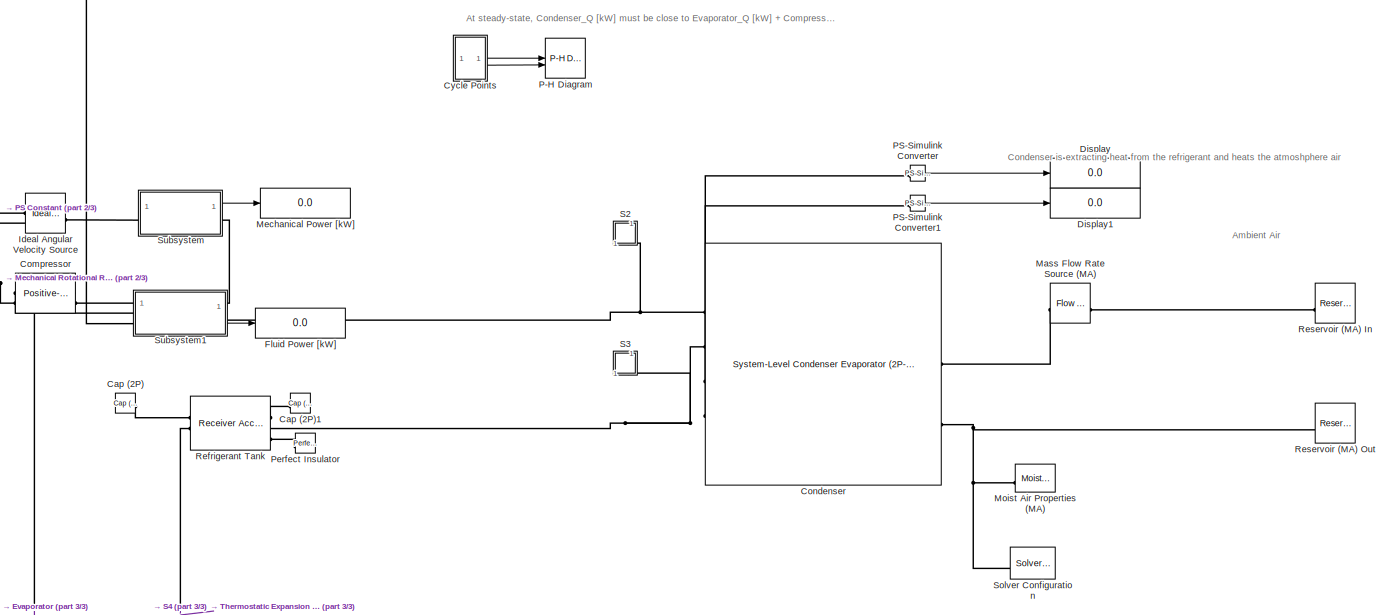
[diagram: root canvas - part 1/3, full width, top band]
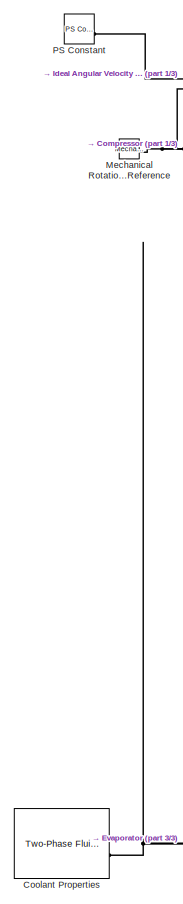
[diagram: root canvas - part 2/3, middle left region]
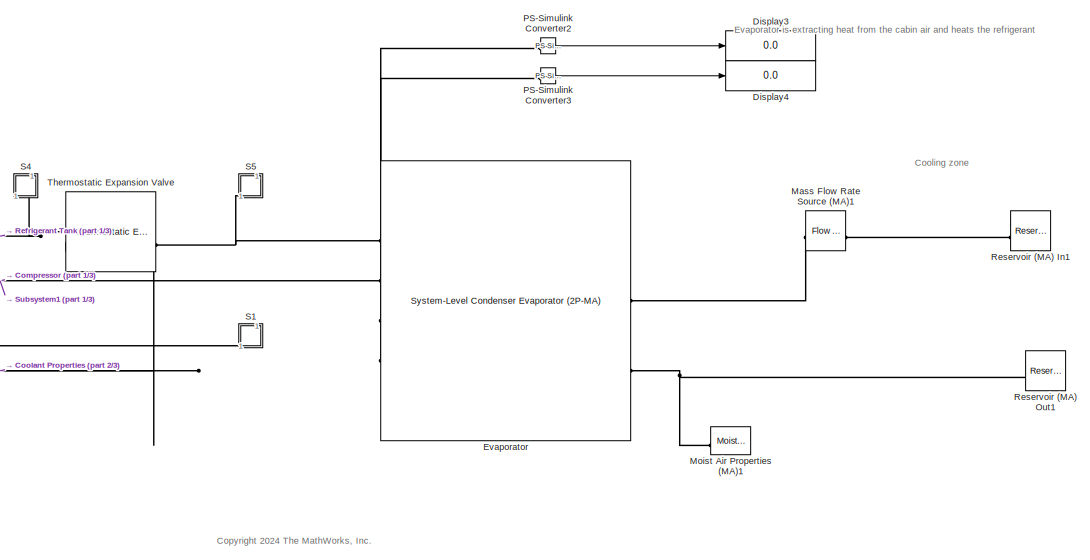
[diagram: root canvas - part 3/3, bottom center region]
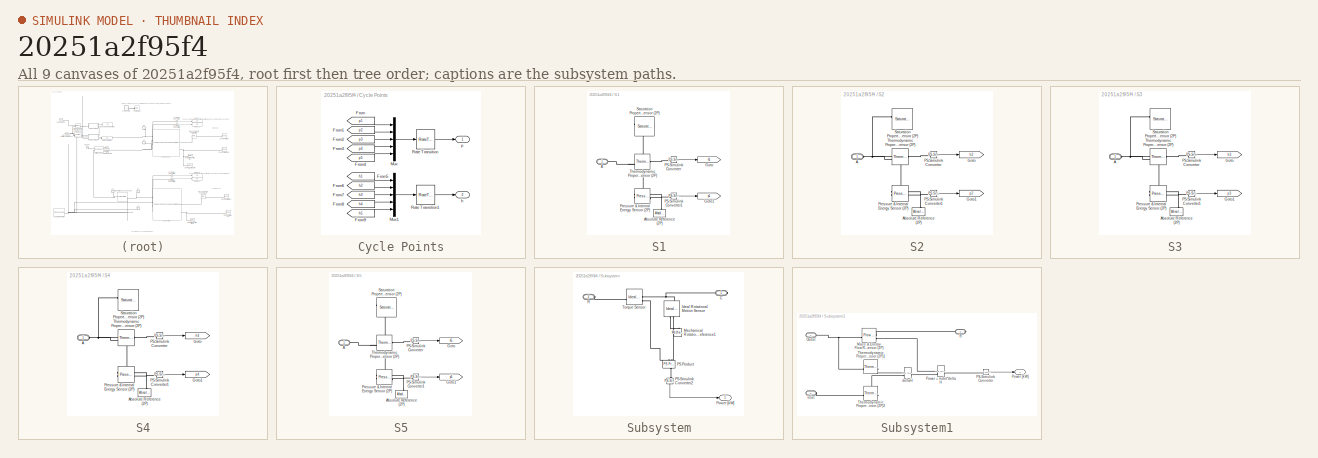
[diagram: thumbnail index - all 9 canvases of the model, root first then tree order]
MODEL slx_20251a2f95f4
KIND model
CONFIG AbsTol = 1e-3
CONFIG EnableMultiTasking = off
CONFIG FixedStep = 0.1
CONFIG MaxStep = 1
CONFIG MinStep = auto
CONFIG RelTol = 1e-3
CONFIG SampleTimeConstraint = Unconstrained
CONFIG SolverName = daessc
CONFIG StartTime = 0
CONFIG StopTime = 600
BLOCK [Reference]  Condenser  REF=SimscapeFluids_lib/Fluid Network
Interfaces/Heat Exchangers/System-Level
Condenser Evaporator
(2P-MA)
  SourceBlock = SimscapeFluids_lib/Fluid Network\nInterfaces/Heat Exchangers/System-Level\nCondenser Evaporator\n(2P-MA)
  SourceType = System-Level\nCondenser Evaporator\n(2P-MA)
BLOCK [Reference]  Evaporator  REF=SimscapeFluids_lib/Fluid Network
Interfaces/Heat Exchangers/System-Level
Condenser Evaporator
(2P-MA)
  SourceBlock = SimscapeFluids_lib/Fluid Network\nInterfaces/Heat Exchangers/System-Level\nCondenser Evaporator\n(2P-MA)
  SourceType = System-Level\nCondenser Evaporator\n(2P-MA)
BLOCK [Reference] Cap (2P)  REF=fl_lib/Two-Phase Fluid/Elements/Cap (2P)
  SourceBlock = fl_lib/Two-Phase Fluid/Elements/Cap (2P)
  SourceType = Cap (2P)
BLOCK [Reference] Cap (2P)1  REF=fl_lib/Two-Phase Fluid/Elements/Cap (2P)
  SourceBlock = fl_lib/Two-Phase Fluid/Elements/Cap (2P)
  SourceType = Cap (2P)
BLOCK [Reference] Compressor  REF=SimscapeFluids_lib/Two-Phase Fluid/Fluid Machines/Positive-Displacement
Compressor (2P)
  SourceBlock = SimscapeFluids_lib/Two-Phase Fluid/Fluid Machines/Positive-Displacement\nCompressor (2P)
  SourceType = Positive-Displacement\nCompressor (2P)
BLOCK [Reference] Coolant Properties  REF=SimscapeFluids_lib/Two-Phase Fluid/Utilities/Two-Phase Fluid
Predefined
Properties (2P)
  AttributesFormatString = Fluid Name = %<fluid>
  SourceBlock = SimscapeFluids_lib/Two-Phase Fluid/Utilities/Two-Phase Fluid\nPredefined\nProperties (2P)
  SourceType = Two-Phase Fluid\nPredefined\nProperties (2P)
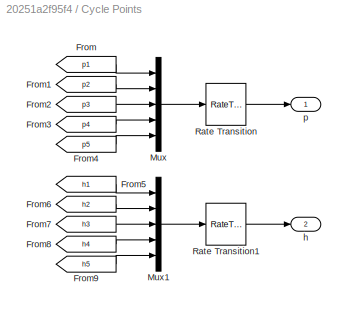
BLOCK [SubSystem] Cycle Points
BLOCK [From] Cycle Points/From
  GotoTag = p1
  TagVisibility = global
BLOCK [From] Cycle Points/From1
  GotoTag = p2
  TagVisibility = global
BLOCK [From] Cycle Points/From2
  GotoTag = p3
  TagVisibility = global
BLOCK [From] Cycle Points/From3
  GotoTag = p4
  TagVisibility = global
BLOCK [From] Cycle Points/From4
  GotoTag = p5
  TagVisibility = global
BLOCK [From] Cycle Points/From5
  GotoTag = h1
  TagVisibility = global
BLOCK [From] Cycle Points/From6
  GotoTag = h2
  TagVisibility = global
BLOCK [From] Cycle Points/From7
  GotoTag = h3
  TagVisibility = global
BLOCK [From] Cycle Points/From8
  GotoTag = h4
  TagVisibility = global
BLOCK [From] Cycle Points/From9
  GotoTag = h5
  TagVisibility = global
BLOCK [Mux] Cycle Points/Mux
  DisplayOption = bar
  Inputs = 5
BLOCK [Mux] Cycle Points/Mux1
  DisplayOption = bar
  Inputs = 5
BLOCK [RateTransition] Cycle Points/Rate Transition
  OutPortSampleTime = 10
BLOCK [RateTransition] Cycle Points/Rate Transition1
  OutPortSampleTime = 10
BLOCK [Outport] Cycle Points/h
  Port = 2
BLOCK [Outport] Cycle Points/p
BLOCK [Display] Display
  Decimation = 1
BLOCK [Display] Display1
  Decimation = 1
BLOCK [Display] Display3
  Decimation = 1
BLOCK [Display] Display4
  Decimation = 1
BLOCK [Display] Fluid Power [kW]
  Decimation = 1
BLOCK [Reference] Ideal Angular Velocity Source  REF=fl_lib/Mechanical/Mechanical Sources/Ideal Angular
Velocity Source
  SourceBlock = fl_lib/Mechanical/Mechanical Sources/Ideal Angular\nVelocity Source
  SourceType = Ideal Angular\nVelocity Source
BLOCK [Reference] Mass Flow Rate Source (MA)  REF=fl_lib/Moist Air/Sources/Flow Rate Source
(MA)
  AttributesFormatString = mass_flow= %<mass_flow>
  SourceBlock = fl_lib/Moist Air/Sources/Flow Rate Source\n(MA)
  SourceType = Flow Rate Source\n(MA)
BLOCK [Reference] Mass Flow Rate Source (MA)1  REF=fl_lib/Moist Air/Sources/Flow Rate Source
(MA)
  AttributesFormatString = mass_flow= %<mass_flow>
  SourceBlock = fl_lib/Moist Air/Sources/Flow Rate Source\n(MA)
  SourceType = Flow Rate Source\n(MA)
BLOCK [Display] Mechanical Power [kW]
  Decimation = 1
BLOCK [Reference] Mechanical Rotational Reference  REF=fl_lib/Mechanical/Rotational Elements/Mechanical
Rotational Reference
  SourceBlock = fl_lib/Mechanical/Rotational Elements/Mechanical\nRotational Reference
  SourceType = Mechanical\nRotational Reference
BLOCK [Reference] Moist Air Properties (MA)  REF=fl_lib/Moist Air/Utilities/Moist Air Properties
(MA)
  SourceBlock = fl_lib/Moist Air/Utilities/Moist Air Properties\n(MA)
  SourceType = Moist Air Properties\n(MA)
BLOCK [Reference] Moist Air Properties (MA)1  REF=fl_lib/Moist Air/Utilities/Moist Air Properties
(MA)
  SourceBlock = fl_lib/Moist Air/Utilities/Moist Air Properties\n(MA)
  SourceType = Moist Air Properties\n(MA)
BLOCK [Reference] P-H Diagram  REF=SimscapeFluids_lib/Two-Phase Fluid/Utilities/P-H Diagram (2P)
  SourceBlock = SimscapeFluids_lib/Two-Phase Fluid/Utilities/P-H Diagram (2P)
  SourceType = P-H Diagram (2P)
  UserDataPersistent = on
BLOCK [Reference] PS Constant  REF=fl_lib/Physical Signals/Sources/PS Constant
  AttributesFormatString = %<constant>
  SourceBlock = fl_lib/Physical Signals/Sources/PS Constant
  SourceType = PS Constant
BLOCK [Reference] PS-Simulink Converter  REF=nesl_utility/PS-Simulink
Converter
  AttributesFormatString = %<Unit>
  SourceBlock = nesl_utility/PS-Simulink\nConverter
  SourceType = PS-Simulink\nConverter
BLOCK [Reference] PS-Simulink Converter1  REF=nesl_utility/PS-Simulink
Converter
  AttributesFormatString = %<Unit>
  SourceBlock = nesl_utility/PS-Simulink\nConverter
  SourceType = PS-Simulink\nConverter
BLOCK [Reference] PS-Simulink Converter2  REF=nesl_utility/PS-Simulink
Converter
  AttributesFormatString = %<Unit>
  SourceBlock = nesl_utility/PS-Simulink\nConverter
  SourceType = PS-Simulink\nConverter
BLOCK [Reference] PS-Simulink Converter3  REF=nesl_utility/PS-Simulink
Converter
  AttributesFormatString = %<Unit>
  SourceBlock = nesl_utility/PS-Simulink\nConverter
  SourceType = PS-Simulink\nConverter
BLOCK [Reference] Perfect Insulator  REF=fl_lib/Thermal/Thermal Elements/Perfect Insulator
  SourceBlock = fl_lib/Thermal/Thermal Elements/Perfect Insulator
  SourceType = Perfect Insulator
BLOCK [Reference] Refrigerant Tank  REF=SimscapeFluids_lib/Two-Phase Fluid/Tanks & Accumulators/Receiver Accumulator
(2P)
  SourceBlock = SimscapeFluids_lib/Two-Phase Fluid/Tanks & Accumulators/Receiver Accumulator\n(2P)
  SourceType = Receiver Accumulator\n(2P)
BLOCK [Reference] Reservoir (MA) In  REF=fl_lib/Moist Air/Elements/Reservoir (MA)
  AttributesFormatString = temperature= %<reservoir_temperature>
  SourceBlock = fl_lib/Moist Air/Elements/Reservoir (MA)
  SourceType = Reservoir (MA)
BLOCK [Reference] Reservoir (MA) In1  REF=fl_lib/Moist Air/Elements/Reservoir (MA)
  AttributesFormatString = temperature= %<reservoir_temperature>
  SourceBlock = fl_lib/Moist Air/Elements/Reservoir (MA)
  SourceType = Reservoir (MA)
BLOCK [Reference] Reservoir (MA) Out  REF=fl_lib/Moist Air/Elements/Reservoir (MA)
  AttributesFormatString = temperature= %<reservoir_temperature>
  SourceBlock = fl_lib/Moist Air/Elements/Reservoir (MA)
  SourceType = Reservoir (MA)
BLOCK [Reference] Reservoir (MA) Out1  REF=fl_lib/Moist Air/Elements/Reservoir (MA)
  AttributesFormatString = temperature= %<reservoir_temperature>
  SourceBlock = fl_lib/Moist Air/Elements/Reservoir (MA)
  SourceType = Reservoir (MA)
BLOCK [SubSystem] S1
  NameLocation = right
BLOCK [PMIOPort] S1/A
  Side = Left
BLOCK [Reference] S1/Absolute Reference (2P)  REF=fl_lib/Two-Phase Fluid/Elements/Absolute Reference
(2P)
  NameLocation = right
  SourceBlock = fl_lib/Two-Phase Fluid/Elements/Absolute Reference\n(2P)
  SourceType = Absolute Reference\n(2P)
BLOCK [Goto] S1/Goto
  GotoTag = h1
  TagVisibility = global
BLOCK [Goto] S1/Goto1
  GotoTag = p1
  TagVisibility = global
BLOCK [Reference] S1/PS-Simulink Converter  REF=nesl_utility/PS-Simulink
Converter
  SourceBlock = nesl_utility/PS-Simulink\nConverter
  SourceType = PS-Simulink\nConverter
BLOCK [Reference] S1/PS-Simulink Converter1  REF=nesl_utility/PS-Simulink
Converter
  SourceBlock = nesl_utility/PS-Simulink\nConverter
  SourceType = PS-Simulink\nConverter
BLOCK [Reference] S1/Pressure & Internal Energy Sensor (2P)  REF=fl_lib/Two-Phase Fluid/Sensors/Pressure,
Temperature &
Internal Energy
Sensor (2P)
  SourceBlock = fl_lib/Two-Phase Fluid/Sensors/Pressure,\nTemperature &\nInternal Energy\nSensor (2P)
  SourceType = Pressure,\nTemperature &\nInternal Energy\nSensor (2P)
BLOCK [Reference] S1/Saturation Properties Sensor (2P)  REF=fl_lib/Two-Phase Fluid/Sensors/Saturation
Properties Sensor
(2P)
  SourceBlock = fl_lib/Two-Phase Fluid/Sensors/Saturation\nProperties Sensor\n(2P)
  SourceType = Saturation\nProperties Sensor\n(2P)
BLOCK [Reference] S1/Thermodynamic Properties Sensor (2P)  REF=fl_lib/Two-Phase Fluid/Sensors/Thermodynamic
Properties Sensor
(2P)
  SourceBlock = fl_lib/Two-Phase Fluid/Sensors/Thermodynamic\nProperties Sensor\n(2P)
  SourceType = Thermodynamic\nProperties Sensor\n(2P)
BLOCK [SubSystem] S2
  NameLocation = right
BLOCK [PMIOPort] S2/A
  Side = Left
BLOCK [Reference] S2/Absolute Reference (2P)  REF=fl_lib/Two-Phase Fluid/Elements/Absolute Reference
(2P)
  NameLocation = right
  SourceBlock = fl_lib/Two-Phase Fluid/Elements/Absolute Reference\n(2P)
  SourceType = Absolute Reference\n(2P)
BLOCK [Goto] S2/Goto
  GotoTag = h2
  TagVisibility = global
BLOCK [Goto] S2/Goto1
  GotoTag = p2
  TagVisibility = global
BLOCK [Reference] S2/PS-Simulink Converter  REF=nesl_utility/PS-Simulink
Converter
  SourceBlock = nesl_utility/PS-Simulink\nConverter
  SourceType = PS-Simulink\nConverter
BLOCK [Reference] S2/PS-Simulink Converter1  REF=nesl_utility/PS-Simulink
Converter
  SourceBlock = nesl_utility/PS-Simulink\nConverter
  SourceType = PS-Simulink\nConverter
BLOCK [Reference] S2/Pressure & Internal Energy Sensor (2P)  REF=fl_lib/Two-Phase Fluid/Sensors/Pressure,
Temperature &
Internal Energy
Sensor (2P)
  SourceBlock = fl_lib/Two-Phase Fluid/Sensors/Pressure,\nTemperature &\nInternal Energy\nSensor (2P)
  SourceType = Pressure,\nTemperature &\nInternal Energy\nSensor (2P)
BLOCK [Reference] S2/Saturation Properties Sensor (2P)  REF=fl_lib/Two-Phase Fluid/Sensors/Saturation
Properties Sensor
(2P)
  SourceBlock = fl_lib/Two-Phase Fluid/Sensors/Saturation\nProperties Sensor\n(2P)
  SourceType = Saturation\nProperties Sensor\n(2P)
BLOCK [Reference] S2/Thermodynamic Properties Sensor (2P)  REF=fl_lib/Two-Phase Fluid/Sensors/Thermodynamic
Properties Sensor
(2P)
  SourceBlock = fl_lib/Two-Phase Fluid/Sensors/Thermodynamic\nProperties Sensor\n(2P)
  SourceType = Thermodynamic\nProperties Sensor\n(2P)
BLOCK [SubSystem] S3
  NameLocation = right
BLOCK [PMIOPort] S3/A
  Side = Left
BLOCK [Reference] S3/Absolute Reference (2P)  REF=fl_lib/Two-Phase Fluid/Elements/Absolute Reference
(2P)
  NameLocation = right
  SourceBlock = fl_lib/Two-Phase Fluid/Elements/Absolute Reference\n(2P)
  SourceType = Absolute Reference\n(2P)
BLOCK [Goto] S3/Goto
  GotoTag = h3
  TagVisibility = global
BLOCK [Goto] S3/Goto1
  GotoTag = p3
  TagVisibility = global
BLOCK [Reference] S3/PS-Simulink Converter  REF=nesl_utility/PS-Simulink
Converter
  SourceBlock = nesl_utility/PS-Simulink\nConverter
  SourceType = PS-Simulink\nConverter
BLOCK [Reference] S3/PS-Simulink Converter1  REF=nesl_utility/PS-Simulink
Converter
  SourceBlock = nesl_utility/PS-Simulink\nConverter
  SourceType = PS-Simulink\nConverter
BLOCK [Reference] S3/Pressure & Internal Energy Sensor (2P)  REF=fl_lib/Two-Phase Fluid/Sensors/Pressure,
Temperature &
Internal Energy
Sensor (2P)
  SourceBlock = fl_lib/Two-Phase Fluid/Sensors/Pressure,\nTemperature &\nInternal Energy\nSensor (2P)
  SourceType = Pressure,\nTemperature &\nInternal Energy\nSensor (2P)
BLOCK [Reference] S3/Saturation Properties Sensor (2P)  REF=fl_lib/Two-Phase Fluid/Sensors/Saturation
Properties Sensor
(2P)
  SourceBlock = fl_lib/Two-Phase Fluid/Sensors/Saturation\nProperties Sensor\n(2P)
  SourceType = Saturation\nProperties Sensor\n(2P)
BLOCK [Reference] S3/Thermodynamic Properties Sensor (2P)  REF=fl_lib/Two-Phase Fluid/Sensors/Thermodynamic
Properties Sensor
(2P)
  SourceBlock = fl_lib/Two-Phase Fluid/Sensors/Thermodynamic\nProperties Sensor\n(2P)
  SourceType = Thermodynamic\nProperties Sensor\n(2P)
BLOCK [SubSystem] S4
  NameLocation = right
BLOCK [PMIOPort] S4/A
  Side = Left
BLOCK [Reference] S4/Absolute Reference (2P)  REF=fl_lib/Two-Phase Fluid/Elements/Absolute Reference
(2P)
  NameLocation = right
  SourceBlock = fl_lib/Two-Phase Fluid/Elements/Absolute Reference\n(2P)
  SourceType = Absolute Reference\n(2P)
BLOCK [Goto] S4/Goto
  GotoTag = h4
  TagVisibility = global
BLOCK [Goto] S4/Goto1
  GotoTag = p4
  TagVisibility = global
BLOCK [Reference] S4/PS-Simulink Converter  REF=nesl_utility/PS-Simulink
Converter
  SourceBlock = nesl_utility/PS-Simulink\nConverter
  SourceType = PS-Simulink\nConverter
BLOCK [Reference] S4/PS-Simulink Converter1  REF=nesl_utility/PS-Simulink
Converter
  SourceBlock = nesl_utility/PS-Simulink\nConverter
  SourceType = PS-Simulink\nConverter
BLOCK [Reference] S4/Pressure & Internal Energy Sensor (2P)  REF=fl_lib/Two-Phase Fluid/Sensors/Pressure,
Temperature &
Internal Energy
Sensor (2P)
  SourceBlock = fl_lib/Two-Phase Fluid/Sensors/Pressure,\nTemperature &\nInternal Energy\nSensor (2P)
  SourceType = Pressure,\nTemperature &\nInternal Energy\nSensor (2P)
BLOCK [Reference] S4/Saturation Properties Sensor (2P)  REF=fl_lib/Two-Phase Fluid/Sensors/Saturation
Properties Sensor
(2P)
  SourceBlock = fl_lib/Two-Phase Fluid/Sensors/Saturation\nProperties Sensor\n(2P)
  SourceType = Saturation\nProperties Sensor\n(2P)
BLOCK [Reference] S4/Thermodynamic Properties Sensor (2P)  REF=fl_lib/Two-Phase Fluid/Sensors/Thermodynamic
Properties Sensor
(2P)
  SourceBlock = fl_lib/Two-Phase Fluid/Sensors/Thermodynamic\nProperties Sensor\n(2P)
  SourceType = Thermodynamic\nProperties Sensor\n(2P)
BLOCK [SubSystem] S5
  NameLocation = right
BLOCK [PMIOPort] S5/A
  Side = Left
BLOCK [Reference] S5/Absolute Reference (2P)  REF=fl_lib/Two-Phase Fluid/Elements/Absolute Reference
(2P)
  NameLocation = right
  SourceBlock = fl_lib/Two-Phase Fluid/Elements/Absolute Reference\n(2P)
  SourceType = Absolute Reference\n(2P)
BLOCK [Goto] S5/Goto
  GotoTag = h5
  TagVisibility = global
BLOCK [Goto] S5/Goto1
  GotoTag = p5
  TagVisibility = global
BLOCK [Reference] S5/PS-Simulink Converter  REF=nesl_utility/PS-Simulink
Converter
  SourceBlock = nesl_utility/PS-Simulink\nConverter
  SourceType = PS-Simulink\nConverter
BLOCK [Reference] S5/PS-Simulink Converter1  REF=nesl_utility/PS-Simulink
Converter
  SourceBlock = nesl_utility/PS-Simulink\nConverter
  SourceType = PS-Simulink\nConverter
BLOCK [Reference] S5/Pressure & Internal Energy Sensor (2P)  REF=fl_lib/Two-Phase Fluid/Sensors/Pressure,
Temperature &
Internal Energy
Sensor (2P)
  SourceBlock = fl_lib/Two-Phase Fluid/Sensors/Pressure,\nTemperature &\nInternal Energy\nSensor (2P)
  SourceType = Pressure,\nTemperature &\nInternal Energy\nSensor (2P)
BLOCK [Reference] S5/Saturation Properties Sensor (2P)  REF=fl_lib/Two-Phase Fluid/Sensors/Saturation
Properties Sensor
(2P)
  SourceBlock = fl_lib/Two-Phase Fluid/Sensors/Saturation\nProperties Sensor\n(2P)
  SourceType = Saturation\nProperties Sensor\n(2P)
BLOCK [Reference] S5/Thermodynamic Properties Sensor (2P)  REF=fl_lib/Two-Phase Fluid/Sensors/Thermodynamic
Properties Sensor
(2P)
  SourceBlock = fl_lib/Two-Phase Fluid/Sensors/Thermodynamic\nProperties Sensor\n(2P)
  SourceType = Thermodynamic\nProperties Sensor\n(2P)
BLOCK [Reference] Solver Configuration  REF=nesl_utility/Solver
Configuration
  SourceBlock = nesl_utility/Solver\nConfiguration
  SourceType = Solver\nConfiguration
BLOCK [SubSystem] Subsystem
BLOCK [PMIOPort] Subsystem/C
  Side = Right
BLOCK [Reference] Subsystem/Ideal Rotational Motion Sensor  REF=fl_lib/Mechanical/Mechanical Sensors/Ideal Rotational
Motion Sensor
  NameLocation = left
  SourceBlock = fl_lib/Mechanical/Mechanical Sensors/Ideal Rotational\nMotion Sensor
  SourceType = Ideal Rotational\nMotion Sensor
BLOCK [Reference] Subsystem/Mechanical Rotational Reference1  REF=fl_lib/Mechanical/Rotational Elements/Mechanical
Rotational Reference
  NameLocation = right
  SourceBlock = fl_lib/Mechanical/Rotational Elements/Mechanical\nRotational Reference
  SourceType = Mechanical\nRotational Reference
BLOCK [Reference] Subsystem/PS Product  REF=fl_lib/Physical Signals/Functions/PS Product
  NameLocation = left
  SourceBlock = fl_lib/Physical Signals/Functions/PS Product
  SourceType = PS Product
BLOCK [Reference] Subsystem/PS-Simulink Converter2  REF=nesl_utility/PS-Simulink
Converter
  AttributesFormatString = %<Unit>
  NameLocation = left
  SourceBlock = nesl_utility/PS-Simulink\nConverter
  SourceType = PS-Simulink\nConverter
BLOCK [Outport] Subsystem/Power [kW]
BLOCK [PMIOPort] Subsystem/R
  Port = 2
  Side = Left
BLOCK [Reference] Subsystem/Torque Sensor  REF=fl_lib/Mechanical/Mechanical Sensors/Ideal Torque Sensor
  SourceBlock = fl_lib/Mechanical/Mechanical Sensors/Ideal Torque Sensor
  SourceType = Ideal Torque Sensor
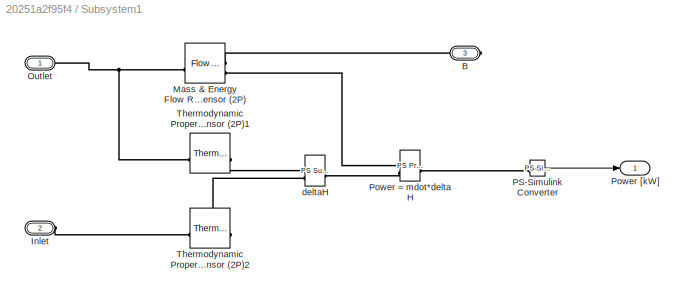
BLOCK [SubSystem] Subsystem1
  PortSchema = {"entries":[{"content":{"sides":[{"content":{"connectorIds":["LConn1","LConn2"]},"type":"ConnectorPlacement.EquallySpacedRectSide","uuid":"a1d3d9b1-df4f-4348-90c4-9c1704538f5f"},{"content":{"connectorIds":["RConn1","Out1"],"side":"RIGHT"},"type":"ConnectorPlacement.EquallySpacedRectSide","uuid":"bb97dd86-af61-4c0c-a6b8-a668ae40502f"},{"content":{"side":"TOP"},"type":"ConnectorPlacement.EquallySpac...<+243ch>
BLOCK [PMIOPort] Subsystem1/B
  Port = 3
  Side = Right
BLOCK [PMIOPort] Subsystem1/Inlet
  Port = 2
  Side = Left
BLOCK [Reference] Subsystem1/Mass & Energy Flow Rate Sensor (2P)  REF=fl_lib/Two-Phase Fluid/Sensors/Flow Rate Sensor
(2P)
  NameLocation = top
  SourceBlock = fl_lib/Two-Phase Fluid/Sensors/Flow Rate Sensor\n(2P)
  SourceType = Flow Rate Sensor\n(2P)
BLOCK [PMIOPort] Subsystem1/Outlet
  Side = Left
BLOCK [Reference] Subsystem1/PS-Simulink Converter  REF=nesl_utility/PS-Simulink
Converter
  AttributesFormatString = %<Unit>
  SourceBlock = nesl_utility/PS-Simulink\nConverter
  SourceType = PS-Simulink\nConverter
BLOCK [Reference] Subsystem1/Power = mdot*deltaH  REF=fl_lib/Physical Signals/Functions/PS Product
  SourceBlock = fl_lib/Physical Signals/Functions/PS Product
  SourceType = PS Product
BLOCK [Outport] Subsystem1/Power [kW]
BLOCK [Reference] Subsystem1/Thermodynamic Properties Sensor (2P)1  REF=fl_lib/Two-Phase Fluid/Sensors/Thermodynamic
Properties Sensor
(2P)
  SourceBlock = fl_lib/Two-Phase Fluid/Sensors/Thermodynamic\nProperties Sensor\n(2P)
  SourceType = Thermodynamic\nProperties Sensor\n(2P)
BLOCK [Reference] Subsystem1/Thermodynamic Properties Sensor (2P)2  REF=fl_lib/Two-Phase Fluid/Sensors/Thermodynamic
Properties Sensor
(2P)
  SourceBlock = fl_lib/Two-Phase Fluid/Sensors/Thermodynamic\nProperties Sensor\n(2P)
  SourceType = Thermodynamic\nProperties Sensor\n(2P)
BLOCK [Reference] Subsystem1/deltaH  REF=fl_lib/Physical Signals/Functions/PS Subtract
  SourceBlock = fl_lib/Physical Signals/Functions/PS Subtract
  SourceType = PS Subtract
BLOCK [Reference] Thermostatic Expansion Valve  REF=SimscapeFluids_lib/Two-Phase Fluid/Valves & Orifices/Flow Control Valves/Thermostatic
Expansion Valve (2P)
  SourceBlock = SimscapeFluids_lib/Two-Phase Fluid/Valves & Orifices/Flow Control Valves/Thermostatic\nExpansion Valve (2P)
  SourceType = Thermostatic\nExpansion Valve (2P)
ANNOTATION (root): At steady-state, Condenser_Q [kW] must be close to Evaporator_Q [kW] + Compressor Fluid Power [kW]
ANNOTATION (root): <copyright redacted>
ANNOTATION (root): Ambient Air
ANNOTATION (root): Condenser is extracting heat from the refrigerant and heats the atmoshphere air
ANNOTATION (root): Cooling zone
ANNOTATION (root): Evaporator is extracting heat from the cabin air and heats the refrigerant
LINE Cycle Points/From1:1 -> Cycle Points/Mux:2
LINE Cycle Points/From2:1 -> Cycle Points/Mux:3
LINE Cycle Points/From3:1 -> Cycle Points/Mux:4
LINE Cycle Points/From4:1 -> Cycle Points/Mux:5
LINE Cycle Points/From5:1 -> Cycle Points/Mux1:1
LINE Cycle Points/From6:1 -> Cycle Points/Mux1:2
LINE Cycle Points/From7:1 -> Cycle Points/Mux1:3
LINE Cycle Points/From8:1 -> Cycle Points/Mux1:4
LINE Cycle Points/From9:1 -> Cycle Points/Mux1:5
LINE Cycle Points/From:1 -> Cycle Points/Mux:1
LINE Cycle Points/Mux1:1 -> Cycle Points/Rate Transition1:1
LINE Cycle Points/Mux:1 -> Cycle Points/Rate Transition:1
LINE Cycle Points/Rate Transition1:1 -> Cycle Points/h:1
LINE Cycle Points/Rate Transition:1 -> Cycle Points/p:1
LINE Cycle Points:1 -> P-H Diagram:1
LINE Cycle Points:2 -> P-H Diagram:2
LINE PS-Simulink Converter1:1 -> Display1:1
LINE PS-Simulink Converter2:1 -> Display3:1
LINE PS-Simulink Converter3:1 -> Display4:1
LINE PS-Simulink Converter:1 -> Display:1
LINE S1/PS-Simulink Converter1:1 -> S1/Goto1:1
LINE S1/PS-Simulink Converter:1 -> S1/Goto:1
LINE S2/PS-Simulink Converter1:1 -> S2/Goto1:1
LINE S2/PS-Simulink Converter:1 -> S2/Goto:1
LINE S3/PS-Simulink Converter1:1 -> S3/Goto1:1
LINE S3/PS-Simulink Converter:1 -> S3/Goto:1
LINE S4/PS-Simulink Converter1:1 -> S4/Goto1:1
LINE S4/PS-Simulink Converter:1 -> S4/Goto:1
LINE S5/PS-Simulink Converter1:1 -> S5/Goto1:1
LINE S5/PS-Simulink Converter:1 -> S5/Goto:1
LINE Subsystem/PS-Simulink Converter2:1 -> Subsystem/Power [kW]:1
LINE Subsystem1/PS-Simulink Converter:1 -> Subsystem1/Power [kW]:1
LINE Subsystem1:1 -> Fluid Power [kW]:1
LINE Subsystem:1 -> Mechanical Power [kW]:1
PNET net1:  Condenser:LConn1 -- S2:LConn1 -- Subsystem1:RConn1
PNET net2:  Condenser:LConn2 -- Refrigerant Tank:LConn2 -- S3:LConn1
PLINE  Condenser:LConn3 -- PS-Simulink Converter:LConn1
PLINE  Condenser:LConn4 -- PS-Simulink Converter1:LConn1
PLINE  Condenser:RConn1 -- Mass Flow Rate Source (MA):RConn1
PNET net3:  Condenser:RConn2 -- Moist Air Properties (MA):RConn1 -- Reservoir (MA) Out:LConn1 -- Solver Configuration:RConn1
PNET net4:  Evaporator:LConn1 -- S5:LConn1 -- Thermostatic Expansion Valve:RConn1
PNET net5:  Evaporator:LConn2 -- Compressor:LConn1 -- Coolant Properties:RConn1 -- S1:LConn1 -- Subsystem1:LConn2 -- Thermostatic Expansion Valve:LConn2
PLINE  Evaporator:LConn3 -- PS-Simulink Converter2:LConn1
PLINE  Evaporator:LConn4 -- PS-Simulink Converter3:LConn1
PLINE  Evaporator:RConn1 -- Mass Flow Rate Source (MA)1:RConn1
PNET net6:  Evaporator:RConn2 -- Moist Air Properties (MA)1:RConn1 -- Reservoir (MA) Out1:LConn1
PLINE Cap (2P)1:LConn1 -- Refrigerant Tank:LConn1
PLINE Cap (2P):LConn1 -- Refrigerant Tank:RConn1
PNET net7: Compressor:LConn2 -- Ideal Angular Velocity Source:RConn2 -- Mechanical Rotational Reference:LConn1
PLINE Compressor:RConn1 -- Subsystem1:LConn1
PLINE Compressor:RConn2 -- Subsystem:RConn1
PLINE Ideal Angular Velocity Source:LConn1 -- Subsystem:LConn1
PLINE Ideal Angular Velocity Source:RConn1 -- PS Constant:RConn1
PLINE Mass Flow Rate Source (MA)1:LConn1 -- Reservoir (MA) In1:LConn1
PLINE Mass Flow Rate Source (MA):LConn1 -- Reservoir (MA) In:LConn1
PLINE Perfect Insulator:LConn1 -- Refrigerant Tank:LConn3
PNET net8: Refrigerant Tank:RConn2 -- S4:LConn1 -- Thermostatic Expansion Valve:LConn1
PNET net9: S1/A:RConn1 -- S1/Pressure & Internal Energy Sensor (2P):LConn1 -- S1/Saturation Properties Sensor (2P):LConn1 -- S1/Thermodynamic Properties Sensor (2P):LConn1
PLINE S1/Absolute Reference (2P):LConn1 -- S1/Pressure & Internal Energy Sensor (2P):RConn1
PLINE S1/PS-Simulink Converter1:LConn1 -- S1/Pressure & Internal Energy Sensor (2P):RConn2
PLINE S1/PS-Simulink Converter:LConn1 -- S1/Thermodynamic Properties Sensor (2P):RConn2
PNET net10: S2/A:RConn1 -- S2/Pressure & Internal Energy Sensor (2P):LConn1 -- S2/Saturation Properties Sensor (2P):LConn1 -- S2/Thermodynamic Properties Sensor (2P):LConn1
PLINE S2/Absolute Reference (2P):LConn1 -- S2/Pressure & Internal Energy Sensor (2P):RConn1
PLINE S2/PS-Simulink Converter1:LConn1 -- S2/Pressure & Internal Energy Sensor (2P):RConn2
PLINE S2/PS-Simulink Converter:LConn1 -- S2/Thermodynamic Properties Sensor (2P):RConn2
PNET net11: S3/A:RConn1 -- S3/Pressure & Internal Energy Sensor (2P):LConn1 -- S3/Saturation Properties Sensor (2P):LConn1 -- S3/Thermodynamic Properties Sensor (2P):LConn1
PLINE S3/Absolute Reference (2P):LConn1 -- S3/Pressure & Internal Energy Sensor (2P):RConn1
PLINE S3/PS-Simulink Converter1:LConn1 -- S3/Pressure & Internal Energy Sensor (2P):RConn2
PLINE S3/PS-Simulink Converter:LConn1 -- S3/Thermodynamic Properties Sensor (2P):RConn2
PNET net12: S4/A:RConn1 -- S4/Pressure & Internal Energy Sensor (2P):LConn1 -- S4/Saturation Properties Sensor (2P):LConn1 -- S4/Thermodynamic Properties Sensor (2P):LConn1
PLINE S4/Absolute Reference (2P):LConn1 -- S4/Pressure & Internal Energy Sensor (2P):RConn1
PLINE S4/PS-Simulink Converter1:LConn1 -- S4/Pressure & Internal Energy Sensor (2P):RConn2
PLINE S4/PS-Simulink Converter:LConn1 -- S4/Thermodynamic Properties Sensor (2P):RConn2
PNET net13: S5/A:RConn1 -- S5/Pressure & Internal Energy Sensor (2P):LConn1 -- S5/Saturation Properties Sensor (2P):LConn1 -- S5/Thermodynamic Properties Sensor (2P):LConn1
PLINE S5/Absolute Reference (2P):LConn1 -- S5/Pressure & Internal Energy Sensor (2P):RConn1
PLINE S5/PS-Simulink Converter1:LConn1 -- S5/Pressure & Internal Energy Sensor (2P):RConn2
PLINE S5/PS-Simulink Converter:LConn1 -- S5/Thermodynamic Properties Sensor (2P):RConn2
PNET net14: Subsystem/C:RConn1 -- Subsystem/Ideal Rotational Motion Sensor:LConn1 -- Subsystem/Torque Sensor:RConn1
PLINE Subsystem/Ideal Rotational Motion Sensor:RConn1 -- Subsystem/Mechanical Rotational Reference1:LConn1
PLINE Subsystem/Ideal Rotational Motion Sensor:RConn2 -- Subsystem/PS Product:LConn1
PLINE Subsystem/PS Product:LConn2 -- Subsystem/Torque Sensor:RConn2
PLINE Subsystem/PS Product:RConn1 -- Subsystem/PS-Simulink Converter2:LConn1
PLINE Subsystem/R:RConn1 -- Subsystem/Torque Sensor:LConn1
PLINE Subsystem1/B:RConn1 -- Subsystem1/Mass & Energy Flow Rate Sensor (2P):RConn1
PLINE Subsystem1/Inlet:RConn1 -- Subsystem1/Thermodynamic Properties Sensor (2P)2:LConn1
PNET net15: Subsystem1/Mass & Energy Flow Rate Sensor (2P):LConn1 -- Subsystem1/Outlet:RConn1 -- Subsystem1/Thermodynamic Properties Sensor (2P)1:LConn1
PLINE Subsystem1/Mass & Energy Flow Rate Sensor (2P):RConn2 -- Subsystem1/Power = mdot*deltaH:LConn1
PLINE Subsystem1/PS-Simulink Converter:LConn1 -- Subsystem1/Power = mdot*deltaH:RConn1
PLINE Subsystem1/Power = mdot*deltaH:LConn2 -- Subsystem1/deltaH:RConn1
PLINE Subsystem1/Thermodynamic Properties Sensor (2P)1:RConn1 -- Subsystem1/deltaH:LConn1
PLINE Subsystem1/Thermodynamic Properties Sensor (2P)2:RConn1 -- Subsystem1/deltaH:LConn2
note: PNET lines group multi-terminal physical nets as a canonical sorted terminal list (undirected conserving connections); 2-terminal nets keep the pairwise PLINE form
